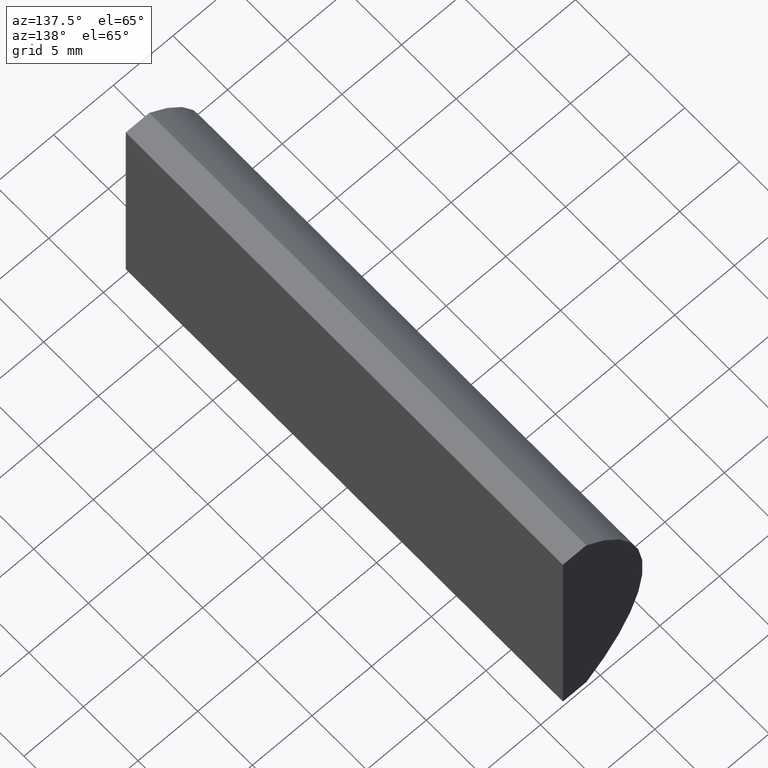
[diagram: clean part render]
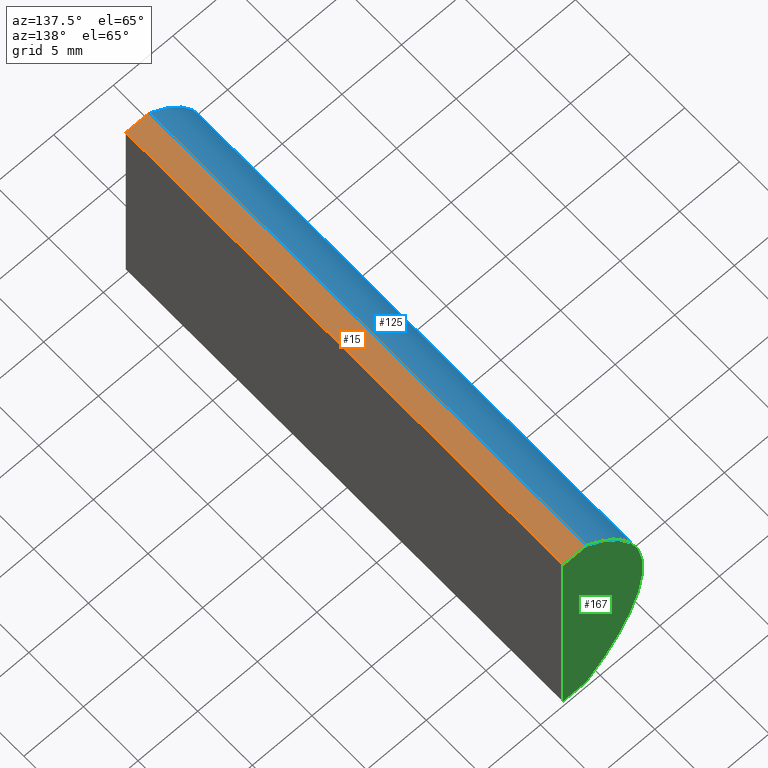
[diagram: same view with three faces highlighted in distinct colors, each labeled with its STEP entity id]
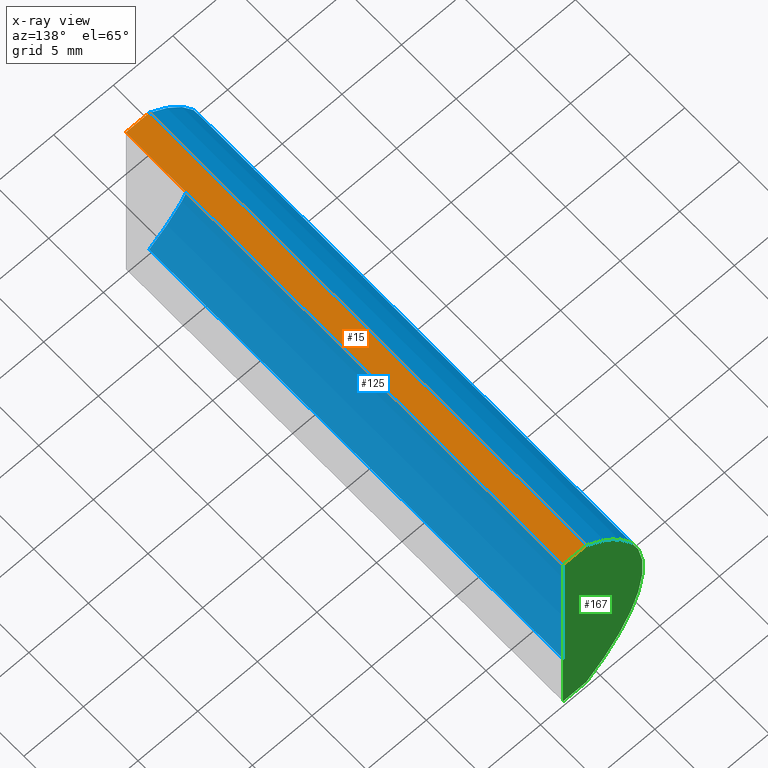
[diagram: x-ray of the same camera — body ghosted, the three highlighted faces saturated]
A machine part, auxiliary view with three faces highlighted in distinct colors.
The next image is the same camera in x-ray (body ghosted, the three faces saturated) — at least one of them is partly hidden behind the body in this view.
Their STEP definitions:

[orange] entity #15 — the highlighted planar face has unit normal (0, 0, -1).
#2 = CARTESIAN_POINT ( 'NONE',  ( -1.874795665148728500, 0.0000000000000000000, 10.00000000000000000 ) ) ;
#6 = EDGE_CURVE ( 'NONE', #11, #108, #195, .T. ) ;
#11 = VERTEX_POINT ( 'NONE', #151 ) ;
#14 = CARTESIAN_POINT ( 'NONE',  ( -3.841435220478750500, 40.00000000000000000, 10.00000000000000000 ) ) ;
#15 = ADVANCED_FACE ( 'NONE', ( #156 ), #142, .F. ) ;
#17 = VECTOR ( 'NONE', #89, 1000.000000000000000 ) ;
#19 = VECTOR ( 'NONE', #87, 1000.000000000000000 ) ;
#30 = VERTEX_POINT ( 'NONE', #120 ) ;
#37 = CARTESIAN_POINT ( 'NONE',  ( -1.874795665148728500, 40.00000000000000000, 10.00000000000000000 ) ) ;
#38 = EDGE_CURVE ( 'NONE', #30, #11, #64, .T. ) ;
#39 = DIRECTION ( 'NONE',  ( -0.0000000000000000000, -1.000000000000000000, -0.0000000000000000000 ) ) ;
#43 = CARTESIAN_POINT ( 'NONE',  ( -3.841435220478750500, 40.00000000000000000, 10.00000000000000000 ) ) ;
#47 = VECTOR ( 'NONE', #177, 1000.000000000000000 ) ;
#48 = ORIENTED_EDGE ( 'NONE', *, *, #86, .T. ) ;
#57 = ORIENTED_EDGE ( 'NONE', *, *, #38, .F. ) ;
#64 = LINE ( 'NONE', #43, #17 ) ;
#77 = DIRECTION ( 'NONE',  ( -1.000000000000000000, 0.0000000000000000000, -0.0000000000000000000 ) ) ;
#86 = EDGE_CURVE ( 'NONE', #30, #185, #145, .T. ) ;
#87 = DIRECTION ( 'NONE',  ( 1.000000000000000000, 0.0000000000000000000, 0.0000000000000000000 ) ) ;
#89 = DIRECTION ( 'NONE',  ( 1.000000000000000000, 0.0000000000000000000, 0.0000000000000000000 ) ) ;
#94 = VECTOR ( 'NONE', #39, 1000.000000000000000 ) ;
#103 = DIRECTION ( 'NONE',  ( 0.0000000000000000000, 0.0000000000000000000, -1.000000000000000000 ) ) ;
#108 = VERTEX_POINT ( 'NONE', #2 ) ;
#116 = EDGE_LOOP ( 'NONE', ( #126, #139, #57, #48 ) ) ;
#118 = LINE ( 'NONE', #128, #19 ) ;
#120 = CARTESIAN_POINT ( 'NONE',  ( -3.841435220478750500, 40.00000000000000000, 10.00000000000000000 ) ) ;
#126 = ORIENTED_EDGE ( 'NONE', *, *, #127, .T. ) ;
#127 = EDGE_CURVE ( 'NONE', #185, #108, #118, .T. ) ;
#128 = CARTESIAN_POINT ( 'NONE',  ( -3.841435220478750500, 0.0000000000000000000, 10.00000000000000000 ) ) ;
#139 = ORIENTED_EDGE ( 'NONE', *, *, #6, .F. ) ;
#142 = PLANE ( 'NONE',  #181 ) ;
#143 = CARTESIAN_POINT ( 'NONE',  ( -3.841435220478750500, 0.0000000000000000000, 10.00000000000000000 ) ) ;
#145 = LINE ( 'NONE', #14, #94 ) ;
#150 = CARTESIAN_POINT ( 'NONE',  ( -3.841435220478750500, 40.00000000000000000, 10.00000000000000000 ) ) ;
#151 = CARTESIAN_POINT ( 'NONE',  ( -1.874795665148728500, 40.00000000000000000, 10.00000000000000000 ) ) ;
#156 = FACE_OUTER_BOUND ( 'NONE', #116, .T. ) ;
#177 = DIRECTION ( 'NONE',  ( -0.0000000000000000000, -1.000000000000000000, -0.0000000000000000000 ) ) ;
#181 = AXIS2_PLACEMENT_3D ( 'NONE', #150, #103, #77 ) ;
#185 = VERTEX_POINT ( 'NONE', #143 ) ;
#195 = LINE ( 'NONE', #37, #47 ) ;

[blue] entity #125 — the highlighted cylindrical surface (partial cylindrical patch) has radius 12.93 mm, axis along (-0, -1, -0).
#8 = VERTEX_POINT ( 'NONE', #104 ) ;
#12 = DIRECTION ( 'NONE',  ( -0.0000000000000000000, -1.000000000000000000, -0.0000000000000000000 ) ) ;
#14 = CARTESIAN_POINT ( 'NONE',  ( -3.841435220478750500, 40.00000000000000000, 10.00000000000000000 ) ) ;
#22 = CARTESIAN_POINT ( 'NONE',  ( -3.841435220478750500, 40.00000000000000000, -10.00000000000000000 ) ) ;
#23 = VECTOR ( 'NONE', #12, 1000.000000000000000 ) ;
#30 = VERTEX_POINT ( 'NONE', #120 ) ;
#33 = ORIENTED_EDGE ( 'NONE', *, *, #111, .F. ) ;
#35 = EDGE_CURVE ( 'NONE', #119, #8, #203, .T. ) ;
#36 = EDGE_CURVE ( 'NONE', #8, #185, #122, .T. ) ;
#39 = DIRECTION ( 'NONE',  ( -0.0000000000000000000, -1.000000000000000000, -0.0000000000000000000 ) ) ;
#49 = DIRECTION ( 'NONE',  ( 0.0000000000000000000, 0.0000000000000000000, -1.000000000000000000 ) ) ;
#55 = DIRECTION ( 'NONE',  ( 0.0000000000000000000, 0.0000000000000000000, 1.000000000000000000 ) ) ;
#66 = ORIENTED_EDGE ( 'NONE', *, *, #35, .T. ) ;
#72 = ORIENTED_EDGE ( 'NONE', *, *, #36, .T. ) ;
#80 = AXIS2_PLACEMENT_3D ( 'NONE', #140, #161, #153 ) ;
#85 = FACE_OUTER_BOUND ( 'NONE', #201, .T. ) ;
#86 = EDGE_CURVE ( 'NONE', #30, #185, #145, .T. ) ;
#94 = VECTOR ( 'NONE', #39, 1000.000000000000000 ) ;
#98 = DIRECTION ( 'NONE',  ( 0.0000000000000000000, 1.000000000000000000, 0.0000000000000000000 ) ) ;
#99 = CARTESIAN_POINT ( 'NONE',  ( 4.355204334851265500, 40.00000000000000000, 4.286263797015675000E-017 ) ) ;
#104 = CARTESIAN_POINT ( 'NONE',  ( -3.841435220478750500, 0.0000000000000000000, -10.00000000000000000 ) ) ;
#106 = CARTESIAN_POINT ( 'NONE',  ( 4.355204334851265500, 40.00000000000000000, 4.286263797015675000E-017 ) ) ;
#111 = EDGE_CURVE ( 'NONE', #119, #30, #171, .T. ) ;
#119 = VERTEX_POINT ( 'NONE', #202 ) ;
#120 = CARTESIAN_POINT ( 'NONE',  ( -3.841435220478750500, 40.00000000000000000, 10.00000000000000000 ) ) ;
#122 = CIRCLE ( 'NONE', #80, 12.93000000000002500 ) ;
#125 = ADVANCED_FACE ( 'NONE', ( #85 ), #174, .T. ) ;
#140 = CARTESIAN_POINT ( 'NONE',  ( 4.355204334851265500, 0.0000000000000000000, 4.286263797015675000E-017 ) ) ;
#143 = CARTESIAN_POINT ( 'NONE',  ( -3.841435220478750500, 0.0000000000000000000, 10.00000000000000000 ) ) ;
#145 = LINE ( 'NONE', #14, #94 ) ;
#152 = DIRECTION ( 'NONE',  ( -0.0000000000000000000, -1.000000000000000000, -0.0000000000000000000 ) ) ;
#153 = DIRECTION ( 'NONE',  ( 0.0000000000000000000, 0.0000000000000000000, 1.000000000000000000 ) ) ;
#155 = AXIS2_PLACEMENT_3D ( 'NONE', #106, #152, #49 ) ;
#161 = DIRECTION ( 'NONE',  ( 0.0000000000000000000, 1.000000000000000000, 0.0000000000000000000 ) ) ;
#171 = CIRCLE ( 'NONE', #193, 12.93000000000002500 ) ;
#174 = CYLINDRICAL_SURFACE ( 'NONE', #155, 12.93000000000002500 ) ;
#185 = VERTEX_POINT ( 'NONE', #143 ) ;
#193 = AXIS2_PLACEMENT_3D ( 'NONE', #99, #98, #55 ) ;
#197 = ORIENTED_EDGE ( 'NONE', *, *, #86, .F. ) ;
#201 = EDGE_LOOP ( 'NONE', ( #72, #197, #33, #66 ) ) ;
#202 = CARTESIAN_POINT ( 'NONE',  ( -3.841435220478750500, 40.00000000000000000, -10.00000000000000000 ) ) ;
#203 = LINE ( 'NONE', #22, #23 ) ;

[green] entity #167 — the highlighted planar face has unit normal (0, 1, 0).
#1 = EDGE_CURVE ( 'NONE', #109, #119, #96, .T. ) ;
#4 = EDGE_CURVE ( 'NONE', #11, #109, #45, .T. ) ;
#5 = FACE_OUTER_BOUND ( 'NONE', #76, .T. ) ;
#11 = VERTEX_POINT ( 'NONE', #151 ) ;
#17 = VECTOR ( 'NONE', #89, 1000.000000000000000 ) ;
#30 = VERTEX_POINT ( 'NONE', #120 ) ;
#34 = ORIENTED_EDGE ( 'NONE', *, *, #38, .T. ) ;
#38 = EDGE_CURVE ( 'NONE', #30, #11, #64, .T. ) ;
#42 = CARTESIAN_POINT ( 'NONE',  ( -1.874795665148734500, 40.00000000000000000, -10.00000000000000400 ) ) ;
#43 = CARTESIAN_POINT ( 'NONE',  ( -3.841435220478750500, 40.00000000000000000, 10.00000000000000000 ) ) ;
#45 = LINE ( 'NONE', #42, #146 ) ;
#46 = DIRECTION ( 'NONE',  ( 0.0000000000000000000, 1.000000000000000000, 0.0000000000000000000 ) ) ;
#55 = DIRECTION ( 'NONE',  ( 0.0000000000000000000, 0.0000000000000000000, 1.000000000000000000 ) ) ;
#63 = CARTESIAN_POINT ( 'NONE',  ( -3.841435220478750500, 40.00000000000000000, -10.00000000000000000 ) ) ;
#64 = LINE ( 'NONE', #43, #17 ) ;
#69 = ORIENTED_EDGE ( 'NONE', *, *, #1, .T. ) ;
#73 = ORIENTED_EDGE ( 'NONE', *, *, #111, .T. ) ;
#76 = EDGE_LOOP ( 'NONE', ( #73, #34, #200, #69 ) ) ;
#78 = DIRECTION ( 'NONE',  ( -1.000000000000000000, -0.0000000000000000000, 1.764149888346681200E-015 ) ) ;
#89 = DIRECTION ( 'NONE',  ( 1.000000000000000000, 0.0000000000000000000, 0.0000000000000000000 ) ) ;
#96 = LINE ( 'NONE', #63, #100 ) ;
#98 = DIRECTION ( 'NONE',  ( 0.0000000000000000000, 1.000000000000000000, 0.0000000000000000000 ) ) ;
#99 = CARTESIAN_POINT ( 'NONE',  ( 4.355204334851265500, 40.00000000000000000, 4.286263797015675000E-017 ) ) ;
#100 = VECTOR ( 'NONE', #78, 1000.000000000000000 ) ;
#109 = VERTEX_POINT ( 'NONE', #162 ) ;
#111 = EDGE_CURVE ( 'NONE', #119, #30, #171, .T. ) ;
#112 = AXIS2_PLACEMENT_3D ( 'NONE', #179, #46, #184 ) ;
#119 = VERTEX_POINT ( 'NONE', #202 ) ;
#120 = CARTESIAN_POINT ( 'NONE',  ( -3.841435220478750500, 40.00000000000000000, 10.00000000000000000 ) ) ;
#146 = VECTOR ( 'NONE', #147, 1000.000000000000000 ) ;
#147 = DIRECTION ( 'NONE',  ( -3.035766082959411900E-016, -0.0000000000000000000, -1.000000000000000000 ) ) ;
#151 = CARTESIAN_POINT ( 'NONE',  ( -1.874795665148728500, 40.00000000000000000, 10.00000000000000000 ) ) ;
#157 = PLANE ( 'NONE',  #112 ) ;
#162 = CARTESIAN_POINT ( 'NONE',  ( -1.874795665148734500, 40.00000000000000000, -10.00000000000000400 ) ) ;
#167 = ADVANCED_FACE ( 'NONE', ( #5 ), #157, .T. ) ;
#171 = CIRCLE ( 'NONE', #193, 12.93000000000002500 ) ;
#179 = CARTESIAN_POINT ( 'NONE',  ( 4.355204334851265500, 40.00000000000000000, 4.286263797015675000E-017 ) ) ;
#184 = DIRECTION ( 'NONE',  ( 0.0000000000000000000, -0.0000000000000000000, 1.000000000000000000 ) ) ;
#193 = AXIS2_PLACEMENT_3D ( 'NONE', #99, #98, #55 ) ;
#200 = ORIENTED_EDGE ( 'NONE', *, *, #4, .T. ) ;
#202 = CARTESIAN_POINT ( 'NONE',  ( -3.841435220478750500, 40.00000000000000000, -10.00000000000000000 ) ) ;